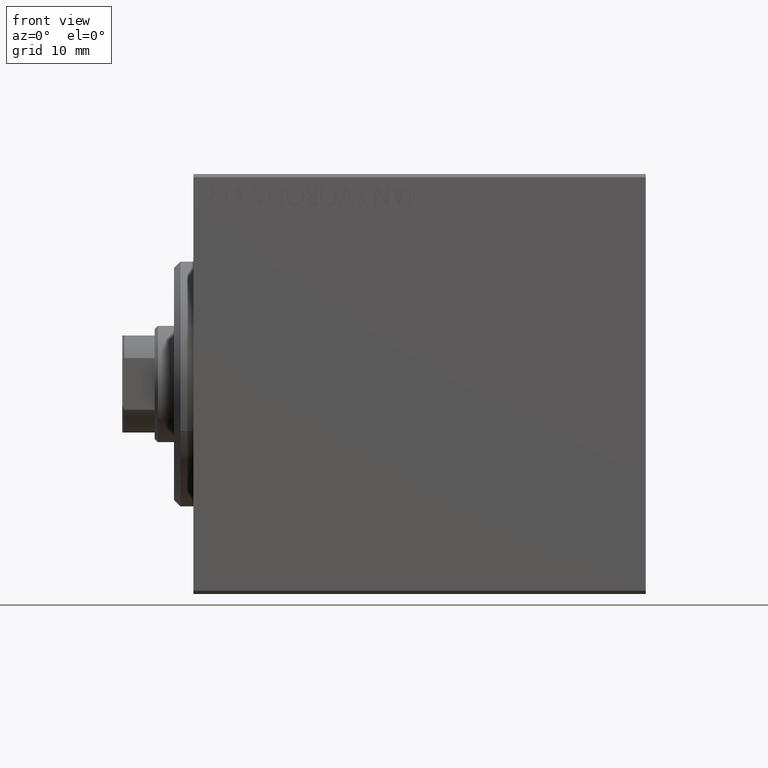
[diagram: clean part render]
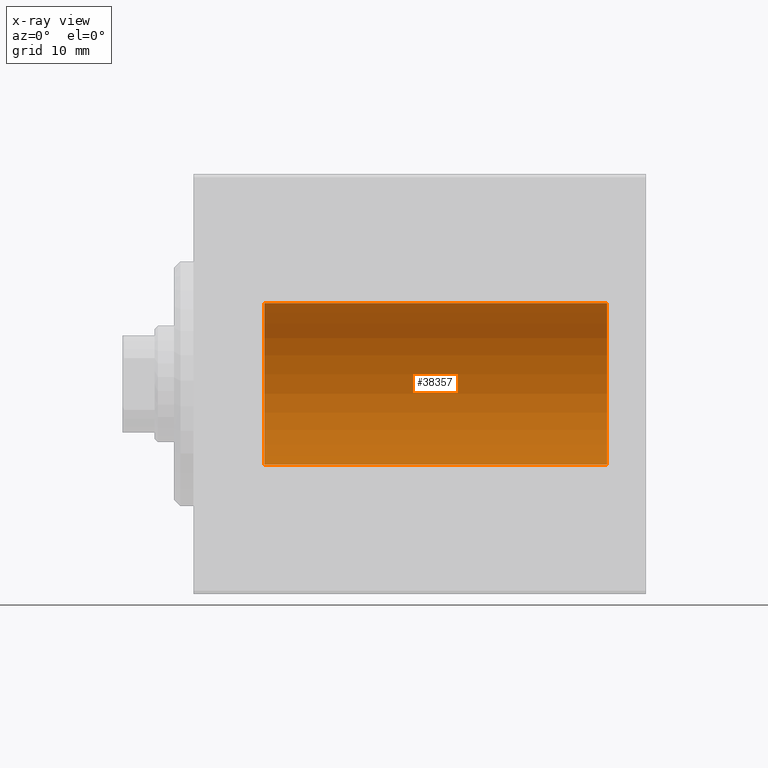
[diagram: x-ray — body ghosted, one internal face saturated and labeled with its STEP entity id]
A machine part, front view, then the same camera in x-ray: the body is ghosted and one INTERNAL B-rep face — a face not visible from any outside direction — is saturated and labeled: STEP entity #38357.
In plain terms, the highlighted cylindrical surface (partial cylindrical patch) has radius 12.5 mm, axis along (-1, -0, -0).
Its self-contained STEP definition (entity closure, byte-faithful):
#1030 = EDGE_LOOP ( 'NONE', ( #15180, #10899, #26341, #30274 ) ) ;
#1394 = VECTOR ( 'NONE', #38817, 1000.000000000000000 ) ;
#3744 = CARTESIAN_POINT ( 'NONE',  ( 10.99999999999999645, 1.530808498934191521E-15, -12.50000000000000000 ) ) ;
#4174 = AXIS2_PLACEMENT_3D ( 'NONE', #9696, #13226, #33765 ) ;
#5591 = CIRCLE ( 'NONE', #4174, 12.50000000000000000 ) ;
#9696 = CARTESIAN_POINT ( 'NONE',  ( 10.99999999999999645, 0.000000000000000000, 0.000000000000000000 ) ) ;
#9847 = CARTESIAN_POINT ( 'NONE',  ( 64.00000000000000000, 0.000000000000000000, 0.000000000000000000 ) ) ;
#9903 = VERTEX_POINT ( 'NONE', #29576 ) ;
#10899 = ORIENTED_EDGE ( 'NONE', *, *, #36400, .F. ) ;
#13022 = DIRECTION ( 'NONE',  ( -1.000000000000000000, 0.000000000000000000, 0.000000000000000000 ) ) ;
#13226 = DIRECTION ( 'NONE',  ( -1.000000000000000000, 0.000000000000000000, 0.000000000000000000 ) ) ;
#15180 = ORIENTED_EDGE ( 'NONE', *, *, #38119, .F. ) ;
#15889 = DIRECTION ( 'NONE',  ( 0.000000000000000000, 0.000000000000000000, 1.000000000000000000 ) ) ;
#17881 = VERTEX_POINT ( 'NONE', #18073 ) ;
#18073 = CARTESIAN_POINT ( 'NONE',  ( 10.99999999999999645, 0.000000000000000000, 12.50000000000000000 ) ) ;
#18311 = AXIS2_PLACEMENT_3D ( 'NONE', #36223, #13022, #15889 ) ;
#19120 = CYLINDRICAL_SURFACE ( 'NONE', #36738, 12.50000000000000000 ) ;
#20533 = VERTEX_POINT ( 'NONE', #3744 ) ;
#21785 = CARTESIAN_POINT ( 'NONE',  ( 64.00000000000000000, 1.530808498934191521E-15, -12.50000000000000000 ) ) ;
#21875 = EDGE_CURVE ( 'NONE', #32057, #17881, #24887, .T. ) ;
#23315 = DIRECTION ( 'NONE',  ( -1.000000000000000000, -0.000000000000000000, -0.000000000000000000 ) ) ;
#24474 = VECTOR ( 'NONE', #30870, 1000.000000000000000 ) ;
#24887 = LINE ( 'NONE', #34405, #24474 ) ;
#26341 = ORIENTED_EDGE ( 'NONE', *, *, #21875, .T. ) ;
#29576 = CARTESIAN_POINT ( 'NONE',  ( 64.00000000000000000, 1.530808498934191521E-15, -12.50000000000000000 ) ) ;
#30274 = ORIENTED_EDGE ( 'NONE', *, *, #35117, .T. ) ;
#30813 = CARTESIAN_POINT ( 'NONE',  ( 64.00000000000000000, 0.000000000000000000, 12.50000000000000000 ) ) ;
#30870 = DIRECTION ( 'NONE',  ( -1.000000000000000000, -0.000000000000000000, -0.000000000000000000 ) ) ;
#31020 = CIRCLE ( 'NONE', #18311, 12.50000000000000000 ) ;
#32057 = VERTEX_POINT ( 'NONE', #30813 ) ;
#33765 = DIRECTION ( 'NONE',  ( 0.000000000000000000, 0.000000000000000000, 1.000000000000000000 ) ) ;
#34405 = CARTESIAN_POINT ( 'NONE',  ( 64.00000000000000000, 0.000000000000000000, 12.50000000000000000 ) ) ;
#35055 = LINE ( 'NONE', #21785, #1394 ) ;
#35117 = EDGE_CURVE ( 'NONE', #17881, #20533, #5591, .T. ) ;
#36223 = CARTESIAN_POINT ( 'NONE',  ( 64.00000000000000000, 0.000000000000000000, 0.000000000000000000 ) ) ;
#36357 = FACE_OUTER_BOUND ( 'NONE', #1030, .T. ) ;
#36400 = EDGE_CURVE ( 'NONE', #32057, #9903, #31020, .T. ) ;
#36738 = AXIS2_PLACEMENT_3D ( 'NONE', #9847, #23315, #36804 ) ;
#36804 = DIRECTION ( 'NONE',  ( 0.000000000000000000, 0.000000000000000000, 1.000000000000000000 ) ) ;
#38119 = EDGE_CURVE ( 'NONE', #9903, #20533, #35055, .T. ) ;
#38357 = ADVANCED_FACE ( 'NONE', ( #36357 ), #19120, .F. ) ;
#38817 = DIRECTION ( 'NONE',  ( -1.000000000000000000, -0.000000000000000000, -0.000000000000000000 ) ) ;